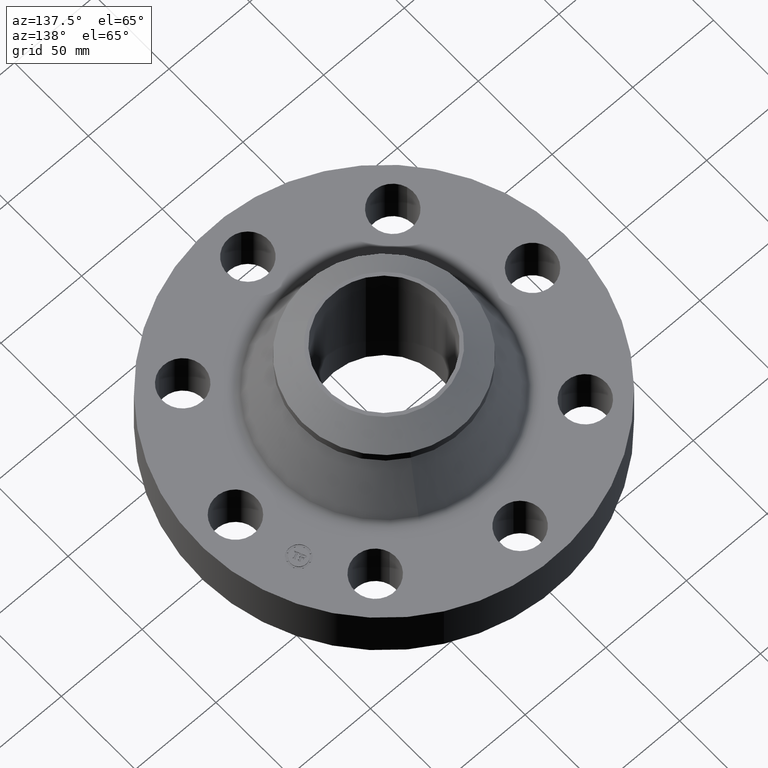
[diagram: clean part render]
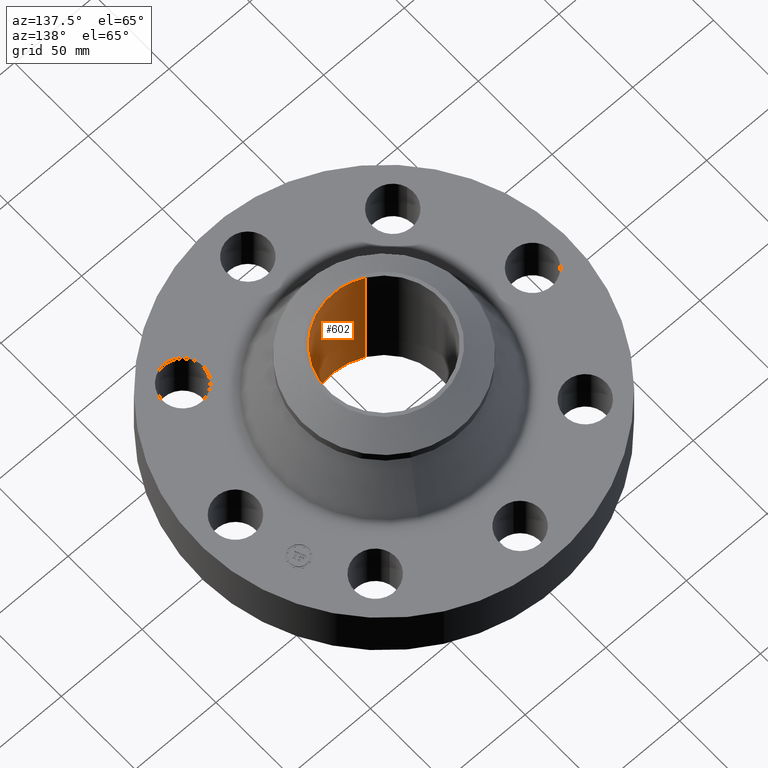
[diagram: same view with one face highlighted and labeled with its STEP entity id]
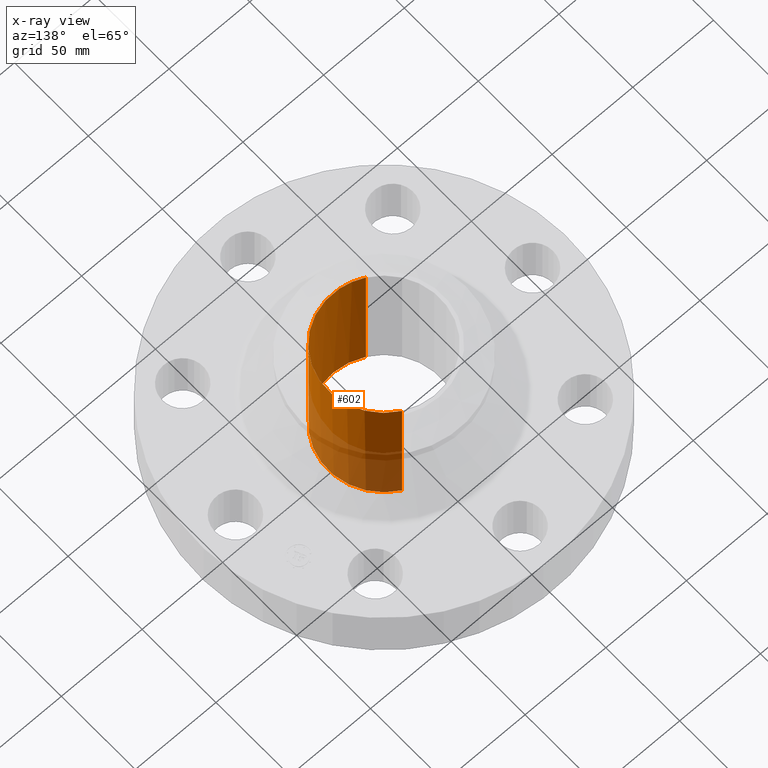
[diagram: x-ray of the same camera — body ghosted, the highlighted face saturated]
A machine part, auxiliary view. The second image highlights one B-rep face of the part: STEP entity #602.
The next image is the same camera in x-ray: the body ghosted, the highlighted face saturated — about 33% of this face is hidden behind the body in this view.
In plain terms, the highlighted cylindrical surface (partial cylindrical patch) has radius 34.6456 mm, axis along (0, 0, -1).
Its self-contained STEP definition (entity closure, byte-faithful):
#165=AXIS2_PLACEMENT_3D('Circle Axis2P3D',#163,#164,$) ;
#563=AXIS2_PLACEMENT_3D('Cylinder Axis2P3D',#560,#561,#562) ;
#163=CARTESIAN_POINT('Axis2P3D Location',(1.39870617276E-016,-5.60489537547E-012,0.)) ;
#167=CARTESIAN_POINT('Vertex',(0.653936434661,1.19702261443,-2.57865470009E-011)) ;
#169=CARTESIAN_POINT('Vertex',(-0.653936434662,-1.19702261443,-2.57865470009E-011)) ;
#560=CARTESIAN_POINT('Axis2P3D Location',(0.,0.,1.69000000001)) ;
#566=CARTESIAN_POINT('Control Point',(0.653936434662,1.19702261443,3.38000000005)) ;
#567=CARTESIAN_POINT('Control Point',(0.841964307246,1.09430251947,3.38000000004)) ;
#568=CARTESIAN_POINT('Control Point',(1.00982313635,0.954663238073,3.38000000004)) ;
#569=CARTESIAN_POINT('Control Point',(1.1478148047,0.783355499722,3.38000000004)) ;
#570=CARTESIAN_POINT('Control Point',(1.34919316982,0.395864060159,3.38000000004)) ;
#571=CARTESIAN_POINT('Control Point',(1.3891016369,-0.0390039381201,3.38000000003)) ;
#572=CARTESIAN_POINT('Control Point',(1.36554361788,-0.257711646016,3.38000000003)) ;
#573=CARTESIAN_POINT('Control Point',(1.23394180088,-0.674105478142,3.38000000003)) ;
#574=CARTESIAN_POINT('Control Point',(0.954663238073,-1.00982313635,3.38000000002)) ;
#575=CARTESIAN_POINT('Control Point',(0.783355499723,-1.1478148047,3.38000000002)) ;
#576=CARTESIAN_POINT('Control Point',(0.39586406016,-1.34919316982,3.38000000002)) ;
#577=CARTESIAN_POINT('Control Point',(-0.0390039381195,-1.3891016369,3.38000000002)) ;
#578=CARTESIAN_POINT('Control Point',(-0.257711646015,-1.36554361788,3.38000000001)) ;
#579=CARTESIAN_POINT('Control Point',(-0.465908562078,-1.29974270938,3.38000000001)) ;
#580=CARTESIAN_POINT('Control Point',(-0.653936434661,-1.19702261443,3.38000000001)) ;
#581=CARTESIAN_POINT('Vertex',(0.653936434684,1.19702261445,3.38000000001)) ;
#583=CARTESIAN_POINT('Vertex',(-0.653936434684,-1.19702261442,3.38000000001)) ;
#586=CARTESIAN_POINT('Line Origine',(0.653936434661,1.19702261443,1.69000000001)) ;
#591=CARTESIAN_POINT('Line Origine',(-0.653936434661,-1.19702261443,1.69000000001)) ;
#164=DIRECTION('Axis2P3D Direction',(0.,0.,-0.0393700787402)) ;
#561=DIRECTION('Axis2P3D Direction',(0.,0.,-0.0393700787402)) ;
#562=DIRECTION('Axis2P3D XDirection',(0.0188750212049,0.0345504945626,0.)) ;
#587=DIRECTION('Vector Direction',(0.,0.,-0.0393700787402)) ;
#592=DIRECTION('Vector Direction',(0.,0.,-0.0393700787402)) ;
#588=VECTOR('Line Direction',#587,0.0393700787402) ;
#593=VECTOR('Line Direction',#592,0.0393700787402) ;
#597=ORIENTED_EDGE('',*,*,#585,.F.) ;
#598=ORIENTED_EDGE('',*,*,#590,.T.) ;
#599=ORIENTED_EDGE('',*,*,#171,.T.) ;
#600=ORIENTED_EDGE('',*,*,#595,.F.) ;
#602=ADVANCED_FACE('PartBody',(#601),#564,.F.) ;
#565=B_SPLINE_CURVE_WITH_KNOTS('',5,(#566,#567,#568,#569,#570,#571,#572,#573,#574,#575,#576,#577,#578,#579,#580),.UNSPECIFIED.,.F.,.U.,(6,3,3,3,6),(-54.42118122,-27.21059061,3.5527136788E-015,27.21059061,54.42118122),.UNSPECIFIED.) ;
#166=CIRCLE('generated circle',#165,1.364) ;
#564=CYLINDRICAL_SURFACE('generated cylinder',#563,1.36400000001) ;
#171=EDGE_CURVE('',#168,#170,#166,.T.) ;
#585=EDGE_CURVE('',#582,#584,#565,.T.) ;
#590=EDGE_CURVE('',#582,#168,#589,.T.) ;
#595=EDGE_CURVE('',#584,#170,#594,.T.) ;
#596=EDGE_LOOP('',(#597,#598,#599,#600)) ;
#601=FACE_OUTER_BOUND('',#596,.T.) ;
#589=LINE('Line',#586,#588) ;
#594=LINE('Line',#591,#593) ;
#168=VERTEX_POINT('',#167) ;
#170=VERTEX_POINT('',#169) ;
#582=VERTEX_POINT('',#581) ;
#584=VERTEX_POINT('',#583) ;